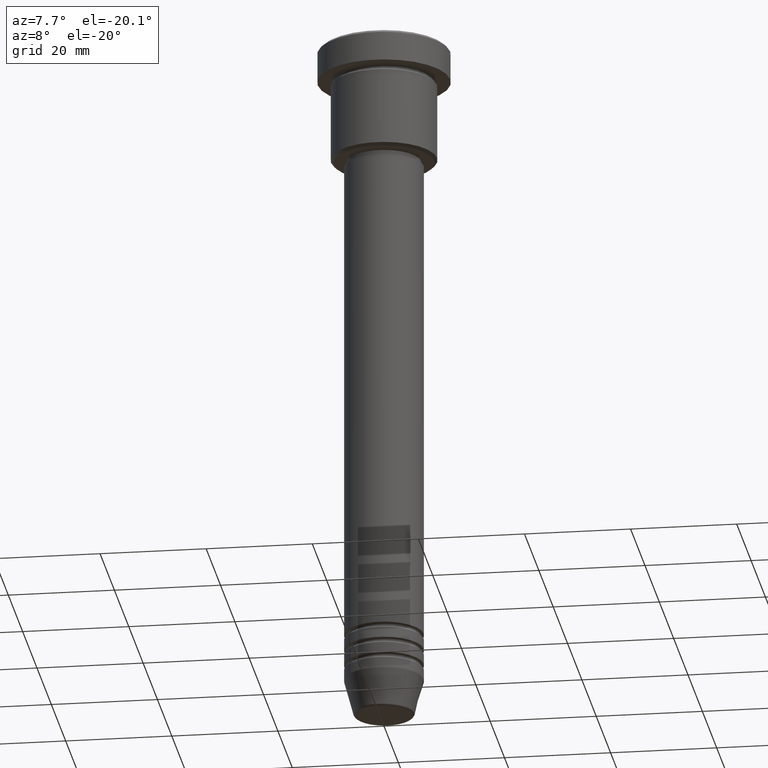
[diagram: clean part render]
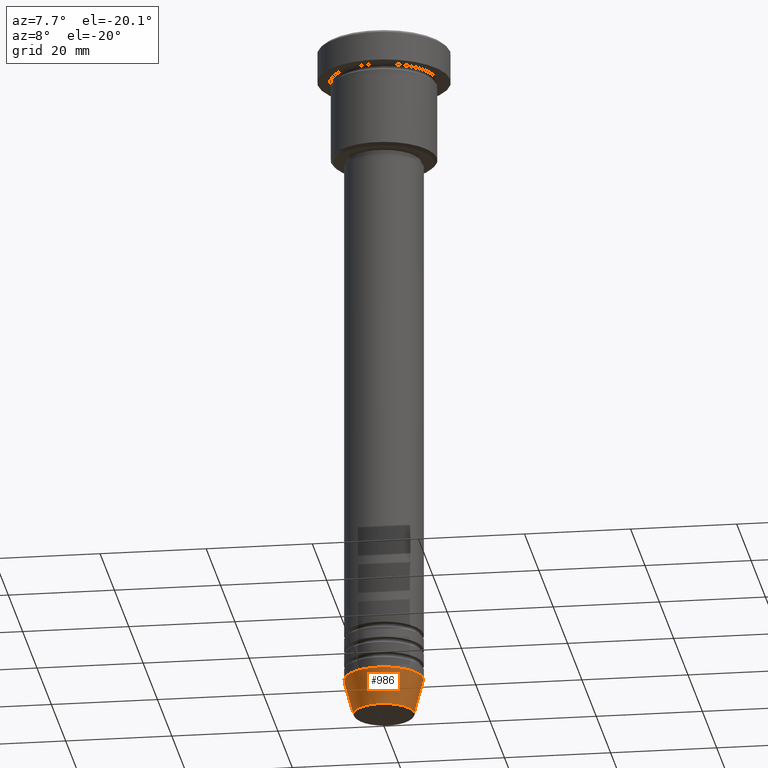
[diagram: same view with one face highlighted and labeled with its STEP entity id]
A machine part, auxiliary view. The second image highlights one B-rep face of the part: STEP entity #986.
In plain terms, the highlighted conical surface has half-angle 15 deg.
Its self-contained STEP definition (entity closure, byte-faithful):
#100 = ORIENTED_EDGE ( 'NONE', *, *, #119, .T. ) ;
#112 = DIRECTION ( 'NONE',  ( -0.2588190451025213501, 3.169619151431772337E-17, 0.9659258262890680902 ) ) ;
#118 = VERTEX_POINT ( 'NONE', #695 ) ;
#119 = EDGE_CURVE ( 'NONE', #118, #625, #847, .T. ) ;
#137 = VECTOR ( 'NONE', #112, 1000.000000000000000 ) ;
#153 = DIRECTION ( 'NONE',  ( 1.000000000000000000, 0.000000000000000000, 0.000000000000000000 ) ) ;
#158 = CIRCLE ( 'NONE', #978, 7.500000000000000000 ) ;
#160 = DIRECTION ( 'NONE',  ( 0.2588190451025213501, 0.000000000000000000, 0.9659258262890680902 ) ) ;
#224 = EDGE_CURVE ( 'NONE', #118, #718, #992, .T. ) ;
#233 = ORIENTED_EDGE ( 'NONE', *, *, #556, .F. ) ;
#243 = VERTEX_POINT ( 'NONE', #284 ) ;
#264 = DIRECTION ( 'NONE',  ( -0.000000000000000000, -0.000000000000000000, 1.000000000000000000 ) ) ;
#284 = CARTESIAN_POINT ( 'NONE',  ( 7.500000000000000000, 0.000000000000000000, -125.0000000000000000 ) ) ;
#393 = AXIS2_PLACEMENT_3D ( 'NONE', #510, #264, #709 ) ;
#422 = LINE ( 'NONE', #797, #635 ) ;
#437 = DIRECTION ( 'NONE',  ( -0.000000000000000000, -0.000000000000000000, 1.000000000000000000 ) ) ;
#467 = CARTESIAN_POINT ( 'NONE',  ( -7.500000000000000000, 9.184850993605147944E-16, -125.0000000000000000 ) ) ;
#510 = CARTESIAN_POINT ( 'NONE',  ( 0.000000000000000000, 0.000000000000000000, -125.0000000000000000 ) ) ;
#537 = CARTESIAN_POINT ( 'NONE',  ( -7.500000000000000000, 9.184850993605147944E-16, -125.0000000000000000 ) ) ;
#541 = EDGE_LOOP ( 'NONE', ( #982, #100, #1087, #233 ) ) ;
#556 = EDGE_CURVE ( 'NONE', #718, #243, #158, .T. ) ;
#625 = VERTEX_POINT ( 'NONE', #883 ) ;
#635 = VECTOR ( 'NONE', #160, 1000.000000000000000 ) ;
#649 = EDGE_CURVE ( 'NONE', #625, #243, #422, .T. ) ;
#695 = CARTESIAN_POINT ( 'NONE',  ( -5.723655072137191269, 8.097153428560735915E-16, -131.6294095225512422 ) ) ;
#709 = DIRECTION ( 'NONE',  ( 1.000000000000000000, 0.000000000000000000, 0.000000000000000000 ) ) ;
#718 = VERTEX_POINT ( 'NONE', #537 ) ;
#797 = CARTESIAN_POINT ( 'NONE',  ( 7.500000000000000000, 0.000000000000000000, -125.0000000000000000 ) ) ;
#809 = CARTESIAN_POINT ( 'NONE',  ( 0.000000000000000000, 0.000000000000000000, -125.0000000000000000 ) ) ;
#847 = CIRCLE ( 'NONE', #921, 5.723655072137191269 ) ;
#883 = CARTESIAN_POINT ( 'NONE',  ( 5.723655072137191269, 0.000000000000000000, -131.6294095225512422 ) ) ;
#921 = AXIS2_PLACEMENT_3D ( 'NONE', #972, #998, #153 ) ;
#969 = FACE_OUTER_BOUND ( 'NONE', #541, .T. ) ;
#972 = CARTESIAN_POINT ( 'NONE',  ( 0.000000000000000000, 0.000000000000000000, -131.6294095225512422 ) ) ;
#978 = AXIS2_PLACEMENT_3D ( 'NONE', #809, #437, #1161 ) ;
#982 = ORIENTED_EDGE ( 'NONE', *, *, #224, .F. ) ;
#986 = ADVANCED_FACE ( 'NONE', ( #969 ), #1041, .T. ) ;
#992 = LINE ( 'NONE', #467, #137 ) ;
#998 = DIRECTION ( 'NONE',  ( -0.000000000000000000, -0.000000000000000000, 1.000000000000000000 ) ) ;
#1041 = CONICAL_SURFACE ( 'NONE', #393, 7.500000000000000000, 0.2617993877991500740 ) ;
#1087 = ORIENTED_EDGE ( 'NONE', *, *, #649, .T. ) ;
#1161 = DIRECTION ( 'NONE',  ( 1.000000000000000000, 0.000000000000000000, 0.000000000000000000 ) ) ;